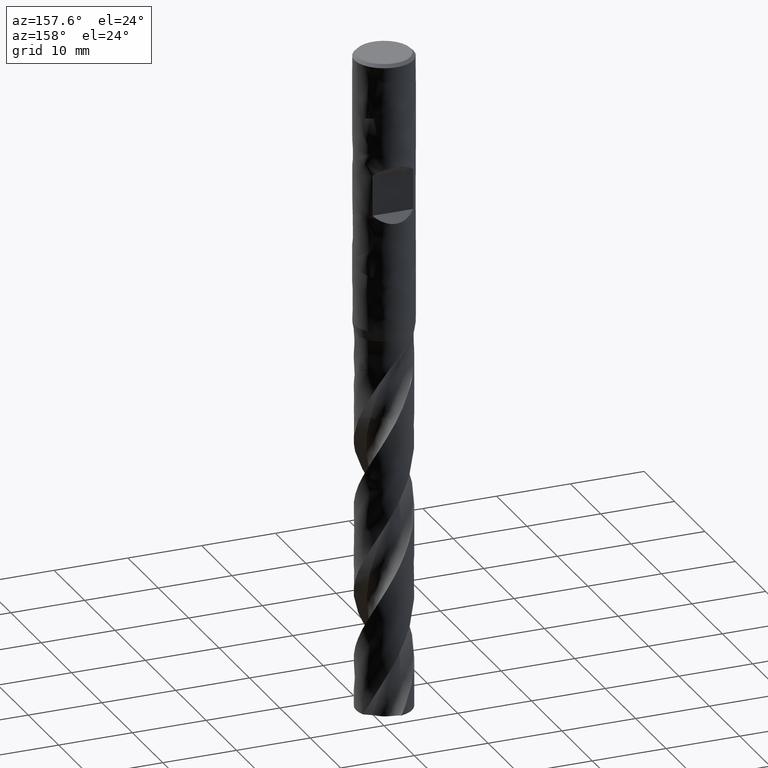
[diagram: clean part render]
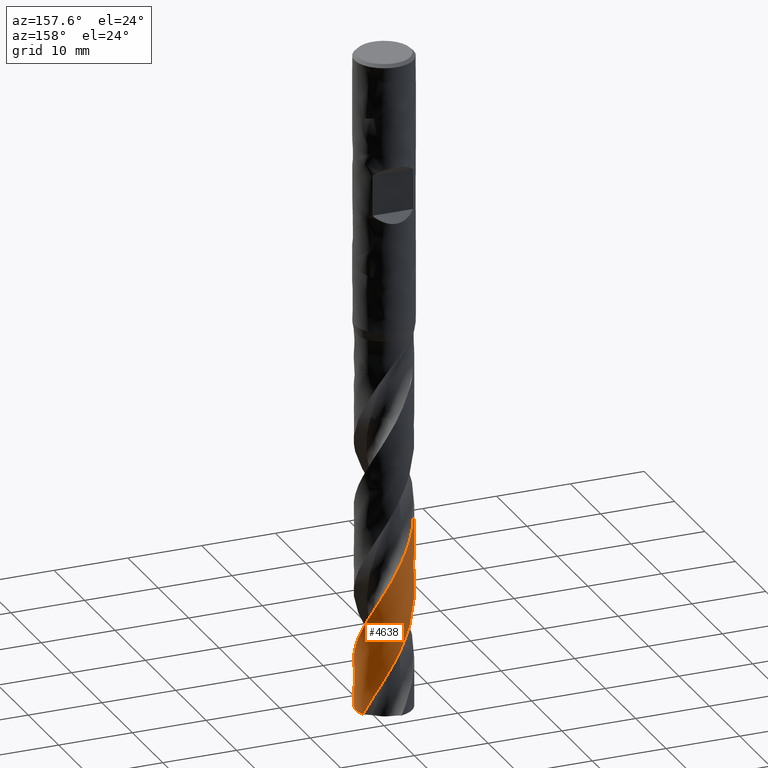
[diagram: same view with one face highlighted and labeled with its STEP entity id]
A machine part, auxiliary view. The second image highlights one B-rep face of the part: STEP entity #4638.
In plain terms, the highlighted face is a freeform B-spline surface patch.
Its self-contained STEP definition (entity closure, byte-faithful):
#3403 = VERTEX_POINT('', #3404);
#3404 = CARTESIAN_POINT('', (-3.8, 4.60787494577363E-15, -71.4523086490213));
#3537 = EDGE_CURVE('', #3538, #3403, #3540, .T.);
#3538 = VERTEX_POINT('', #3539);
#3539 = CARTESIAN_POINT('', (3.47322143112117, 1.54166562211157, -89.6169131097884));
#3540 = B_SPLINE_CURVE_WITH_KNOTS('', 3, (#3541, #3542, #3543, #3544, #3545, #3546, #3547, #3548, #3549, #3550, #3551, #3552, #3553, #3554, #3555, #3556, #3557, #3558, #3559, #3560, #3561, #3562, #3563, #3564, #3565, #3566, #3567, #3568, #3569, #3570, #3571, #3572, #3573, #3574, #3575, #3576, #3577, #3578, #3579, #3580, #3581, #3582, #3583, #3584, #3585, #3586, #3587, #3588, #3589, #3590, #3591, #3592, #3593, #3594, #3595, #3596, #3597, #3598, #3599, #3600, #3601, #3602, #3603, #3604, #3605, #3606, #3607, #3608, #3609, #3610, #3611, #3612, #3613, #3614, #3615, #3616, #3617, #3618, #3619, #3620, #3621, #3622, #3623, #3624, #3625, #3626, #3627, #3628, #3629, #3630, #3631, #3632, #3633, #3634, #3635, #3636, #3637, #3638, #3639, #3640), .UNSPECIFIED., .F., .U., (4, 3, 3, 3, 3, 3, 3, 3, 3, 3, 3, 3, 3, 3, 3, 3, 3, 3, 3, 3, 3, 3, 3, 3, 3, 3, 3, 3, 3, 3, 3, 3, 3, 4), (0., 0.665608523201099, 1.33105944424927, 1.99635525688084, 2.6614979072382, 3.32648864991927, 3.99132805909783, 4.65601599023522, 5.3205518367991, 5.98493467396176, 6.64916294628067, 7.31323440252278, 7.97714602530676, 8.64089397263767, 8.83782115761003, 8.89620505573917, 9.5626280298918, 10.2288700928858, 10.89493754029, 11.5608358022644, 12.226569413266, 12.8921420580282, 13.5575566020663, 14.2228151781672, 14.8879195174179, 15.5528707979881, 16.2176695753299, 16.8823157565046, 17.5468085680973, 18.2111466279843, 18.875328167023, 19.5393508010512, 20.2032114383578, 20.9050750751549), .UNSPECIFIED.);
#3541 = CARTESIAN_POINT('', (3.47322143112117, 1.54166562211157, -89.6169131097884));
#3542 = CARTESIAN_POINT('', (3.4287370697299, 1.6418845250422, -89.4240313025878));
#3543 = CARTESIAN_POINT('', (3.37989840608135, 1.74020464956586, -89.231108811655));
#3544 = CARTESIAN_POINT('', (3.32690885699985, 1.83621280281343, -89.0382341874554));
#3545 = CARTESIAN_POINT('', (3.27393185473338, 1.9321982233418, -88.8454052319259));
#3546 = CARTESIAN_POINT('', (3.21678224873667, 2.02591572115514, -88.6525354005174));
#3547 = CARTESIAN_POINT('', (3.15569793079541, 2.11697202852886, -88.4597136569228));
#3548 = CARTESIAN_POINT('', (3.09462785085659, 2.20800711179842, -88.2669368577025));
#3549 = CARTESIAN_POINT('', (3.02959782823982, 2.296422579319, -88.0741191608836));
#3550 = CARTESIAN_POINT('', (2.96087888634109, 2.38184722860631, -87.8813494234099));
#3551 = CARTESIAN_POINT('', (2.89217576469739, 2.46725221170406, -87.6886240647686));
#3552 = CARTESIAN_POINT('', (2.81975446284853, 2.54970618028877, -87.4958581476118));
#3553 = CARTESIAN_POINT('', (2.74391779176185, 2.62886194998003, -87.3031398107364));
#3554 = CARTESIAN_POINT('', (2.66809844052749, 2.70799964179126, -87.1104654875695));
#3555 = CARTESIAN_POINT('', (2.58883025622656, 2.78387714769229, -86.9177509617296));
#3556 = CARTESIAN_POINT('', (2.50644563773044, 2.85617406071515, -86.7250836990791));
#3557 = CARTESIAN_POINT('', (2.42407976769512, 2.92845452096, -86.5324602821693));
#3558 = CARTESIAN_POINT('', (2.33856037811085, 2.99718980603697, -86.3397967340994));
#3559 = CARTESIAN_POINT('', (2.25024615381847, 3.0620895230586, -86.1471805179077));
#3560 = CARTESIAN_POINT('', (2.1619520511758, 3.12697445322813, -85.9546081876931));
#3561 = CARTESIAN_POINT('', (2.07082381264477, 3.1880554322854, -85.7619953411637));
#3562 = CARTESIAN_POINT('', (1.97724248761639, 3.24507506002012, -85.5694302800862));
#3563 = CARTESIAN_POINT('', (1.8836825745548, 3.30208164132302, -85.3769092790462));
#3564 = CARTESIAN_POINT('', (1.78762893226396, 3.35505420990411, -85.1843474110194));
#3565 = CARTESIAN_POINT('', (1.6894824201439, 3.40376984416173, -84.9918335345769));
#3566 = CARTESIAN_POINT('', (1.59135850626157, 3.45247426164291, -84.799363984461));
#3567 = CARTESIAN_POINT('', (1.491099073261, 3.49694533584245, -84.6068536625928));
#3568 = CARTESIAN_POINT('', (1.38912303576366, 3.53699550346206, -84.4143911407098));
#3569 = CARTESIAN_POINT('', (1.28717072240461, 3.57703635364064, -84.2219733941249));
#3570 = CARTESIAN_POINT('', (1.18345645687144, 3.61267643893127, -84.0295152138289));
#3571 = CARTESIAN_POINT('', (1.07841477703084, 3.64376475210484, -83.8371044673427));
#3572 = CARTESIAN_POINT('', (0.973397896231198, 3.67484572571232, -83.6447391466531));
#3573 = CARTESIAN_POINT('', (0.867005597804218, 3.70139143835938, -83.4523337062437));
#3574 = CARTESIAN_POINT('', (0.759684615100111, 3.72328877278952, -83.2599754410364));
#3575 = CARTESIAN_POINT('', (0.652389463176161, 3.7451808368129, -83.0676634739894));
#3576 = CARTESIAN_POINT('', (0.544116053657727, 3.76243697681111, -82.8753113563683));
#3577 = CARTESIAN_POINT('', (0.435318635561176, 3.77498313711913, -82.6830065970925));
#3578 = CARTESIAN_POINT('', (0.326548039508537, 3.78752620439729, -82.4907492470915));
#3579 = CARTESIAN_POINT('', (0.217204078610861, 3.79536737727738, -82.2984513323388));
#3580 = CARTESIAN_POINT('', (0.107744039308584, 3.7984722220907, -82.1062011841817));
#3581 = CARTESIAN_POINT('', (0.0752683721619798, 3.79939339759312, -82.0491625437772));
#3582 = CARTESIAN_POINT('', (0.042779710786044, 3.79989808796342, -81.9921230537736));
#3583 = CARTESIAN_POINT('', (0.0102900997918511, 3.79998606758582, -81.9350849835296));
#3584 = CARTESIAN_POINT('', (0.000657757061686365, 3.80001215130459, -81.9181746474423));
#3585 = CARTESIAN_POINT('', (-0.00897474602599896, 3.80000161031444, -81.9012643065416));
#3586 = CARTESIAN_POINT('', (-0.0186070995224115, 3.79995444391737, -81.8843540222486));
#3587 = CARTESIAN_POINT('', (-0.128555593385741, 3.79941606310312, -81.6913315911779));
#3588 = CARTESIAN_POINT('', (-0.238512670461871, 3.79410114208098, -81.4982684339614));
#3589 = CARTESIAN_POINT('', (-0.34801313876902, 3.78403050400554, -81.3052532797832));
#3590 = CARTESIAN_POINT('', (-0.457483881425397, 3.77396259976563, -81.112290522651));
#3591 = CARTESIAN_POINT('', (-0.566548399231276, 3.75913698966904, -80.919286623452));
#3592 = CARTESIAN_POINT('', (-0.674746688142886, 3.73961453987444, -80.7263310947304));
#3593 = CARTESIAN_POINT('', (-0.782916619331259, 3.72009720672479, -80.5334261377835));
#3594 = CARTESIAN_POINT('', (-0.890269354458009, 3.69587674043127, -80.3404798861369));
#3595 = CARTESIAN_POINT('', (-0.996352471630336, 3.66705355186916, -80.1475820407021));
#3596 = CARTESIAN_POINT('', (-1.10240864300635, 3.63823768458293, -79.9547331925648));
#3597 = CARTESIAN_POINT('', (-1.20724366475434, 3.60480841605224, -79.7618432376716));
#3598 = CARTESIAN_POINT('', (-1.31041501039927, 3.56690517122622, -79.5690014336151));
#3599 = CARTESIAN_POINT('', (-1.4135608457472, 3.52901129841164, -79.3762073119036));
#3600 = CARTESIAN_POINT('', (-1.51509124549378, 3.48662820526158, -79.1833724136468));
#3601 = CARTESIAN_POINT('', (-1.61457656510718, 3.43993350450365, -78.9905853331264));
#3602 = CARTESIAN_POINT('', (-1.71403783038787, 3.39325009395287, -78.7978448661626));
#3603 = CARTESIAN_POINT('', (-1.81150156324607, 3.34223528708758, -78.6050638425811));
#3604 = CARTESIAN_POINT('', (-1.90655474350531, 3.28710343768149, -78.4123304935702));
#3605 = CARTESIAN_POINT('', (-2.00158534474669, 3.23198468434444, -78.2196429266121));
#3606 = CARTESIAN_POINT('', (-2.09425097825625, 3.17272509484493, -78.0269146449689));
#3607 = CARTESIAN_POINT('', (-2.18415957329815, 3.10957343672248, -77.8342343314547));
#3608 = CARTESIAN_POINT('', (-2.27404709447229, 3.04643658085216, -77.641599180691));
#3609 = CARTESIAN_POINT('', (-2.36121989229479, 2.97938070985938, -77.4489229228469));
#3610 = CARTESIAN_POINT('', (-2.44531007475832, 2.90868675492661, -77.2562949490451));
#3611 = CARTESIAN_POINT('', (-2.52938076133655, 2.83800919003125, -77.0637116350689));
#3612 = CARTESIAN_POINT('', (-2.6104080424575, 2.76366346998024, -76.8710871299144));
#3613 = CARTESIAN_POINT('', (-2.68804998836401, 2.68596114269292, -76.6785108906913));
#3614 = CARTESIAN_POINT('', (-2.76567406673743, 2.60827669683409, -76.4859789685223));
#3615 = CARTESIAN_POINT('', (-2.83994948346621, 2.52720201118442, -76.2934060643397));
#3616 = CARTESIAN_POINT('', (-2.91056215657661, 2.44307755355906, -76.1008811627004));
#3617 = CARTESIAN_POINT('', (-2.98115863502595, 2.35897238945451, -75.9084004156781));
#3618 = CARTESIAN_POINT('', (-3.04812659423621, 2.27178003184526, -75.7158789948248));
#3619 = CARTESIAN_POINT('', (-3.1111820835288, 2.18186755856752, -75.5234052776789));
#3620 = CARTESIAN_POINT('', (-3.17422309922982, 2.091975723563, -75.3309757404451));
#3621 = CARTESIAN_POINT('', (-3.23338294785028, 1.99932292633316, -75.1385056861759));
#3622 = CARTESIAN_POINT('', (-3.2884104043262, 1.90429961211969, -74.9460832673916));
#3623 = CARTESIAN_POINT('', (-3.34342516301158, 1.80929822488992, -74.7537052507972));
#3624 = CARTESIAN_POINT('', (-3.39433506838022, 1.71188320591533, -74.5612865026466));
#3625 = CARTESIAN_POINT('', (-3.44092414624077, 1.61246426931491, -74.3689157112386));
#3626 = CARTESIAN_POINT('', (-3.48750237411296, 1.51306848608764, -74.1765897204779));
#3627 = CARTESIAN_POINT('', (-3.52978298354679, 1.41162455490792, -73.9842226561933));
#3628 = CARTESIAN_POINT('', (-3.56758677178201, 1.3085582240795, -73.7919037938792));
#3629 = CARTESIAN_POINT('', (-3.60538165328532, 1.20551617611322, -73.5996302427));
#3630 = CARTESIAN_POINT('', (-3.63871882806991, 1.10080612033904, -73.4073156077959));
#3631 = CARTESIAN_POINT('', (-3.66745666296212, 0.994867642098631, -73.2150490977797));
#3632 = CARTESIAN_POINT('', (-3.69618762234562, 0.888954509571725, -73.0228285874037));
#3633 = CARTESIAN_POINT('', (-3.72033447650589, 0.781765395785943, -72.8305672251737));
#3634 = CARTESIAN_POINT('', (-3.7397940298222, 0.67375115176639, -72.6383537158889));
#3635 = CARTESIAN_POINT('', (-3.75924883573432, 0.565763259188067, -72.4461870995212));
#3636 = CARTESIAN_POINT('', (-3.77402760622403, 0.456900647341844, -72.2539799125677));
#3637 = CARTESIAN_POINT('', (-3.78406644488966, 0.347622123376554, -72.0618203206109));
#3638 = CARTESIAN_POINT('', (-3.79467996137057, 0.232087901366832, -71.8586604667545));
#3639 = CARTESIAN_POINT('', (-3.8, 0.116034598095936, -71.6554605661946));
#3640 = CARTESIAN_POINT('', (-3.8, 4.32143550806654E-15, -71.4523086490213));
#3819 = VERTEX_POINT('', #3820);
#3820 = CARTESIAN_POINT('', (-3.8, 3.88552467171039E-15, -59.6554334264482));
#3869 = EDGE_CURVE('', #3819, #3403, #3870, .T.);
#3870 = LINE('', #3871, #3872);
#3871 = CARTESIAN_POINT('', (-3.8, 3.88552467171039E-15, -59.6554334264482));
#3872 = VECTOR('', #3873, 11.7968752225731);
#3873 = DIRECTION('', (0., 7.22350274063245E-16, -11.7968752225731));
#3897 = VERTEX_POINT('', #3898);
#3898 = CARTESIAN_POINT('', (0.818390835246708, -3.71082692142656, -89.6169131097884));
#4022 = EDGE_CURVE('', #4023, #3897, #4025, .T.);
#4023 = VERTEX_POINT('', #4024);
#4024 = CARTESIAN_POINT('', (1.45695128505315, -3.50960011297326, -88.433287096672));
#4025 = B_SPLINE_CURVE_WITH_KNOTS('', 3, (#4026, #4027, #4028, #4029, #4030, #4031, #4032), .UNSPECIFIED., .F., .U., (4, 3, 4), (0., 0.664272788119889, 1.36018940492356), .UNSPECIFIED.);
#4026 = CARTESIAN_POINT('', (1.45695128505302, -3.50960011297332, -88.4332870966722));
#4027 = CARTESIAN_POINT('', (1.35615368713917, -3.55144453543842, -88.6259463624201));
#4028 = CARTESIAN_POINT('', (1.25353672502603, -3.58894882740191, -88.8186536722514));
#4029 = CARTESIAN_POINT('', (1.14952566308425, -3.62195951798336, -89.0113209954182));
#4030 = CARTESIAN_POINT('', (1.04055984718572, -3.65654273216684, -89.213166372957));
#4031 = CARTESIAN_POINT('', (0.930016094089074, -3.68620893445144, -89.4150595478254));
#4032 = CARTESIAN_POINT('', (0.818390835246634, -3.71082692142658, -89.6169131097884));
#4431 = EDGE_CURVE('', #3538, #3897, #4432, .T.);
#4432 = CIRCLE('', #4433, 3.80000000000001);
#4433 = AXIS2_PLACEMENT_3D('', #4434, #4435, #4436);
#4434 = CARTESIAN_POINT('', (3.36009605320907E-31, 5.48745328946844E-15, -89.6169131097884));
#4435 = DIRECTION('', (3.74939945665464E-33, 6.12323399573677E-17, -1.));
#4436 = DIRECTION('', (-1., 6.12323399573677E-17, 0.));
#4638 = ADVANCED_FACE('', (#4639), #4808, .T.);
#4639 = FACE_OUTER_BOUND('', #4640, .T.);
#4640 = EDGE_LOOP('', (#4641, #4642, #4643, #4644, #4645));
#4641 = ORIENTED_EDGE('', *, *, #4022, .T.);
#4642 = ORIENTED_EDGE('', *, *, #4431, .F.);
#4643 = ORIENTED_EDGE('', *, *, #3537, .T.);
#4644 = ORIENTED_EDGE('', *, *, #3869, .F.);
#4645 = ORIENTED_EDGE('', *, *, #4646, .F.);
#4646 = EDGE_CURVE('', #4023, #3819, #4647, .T.);
#4647 = B_SPLINE_CURVE_WITH_KNOTS('', 3, (#4648, #4649, #4650, #4651, #4652, #4653, #4654, #4655, #4656, #4657, #4658, #4659, #4660, #4661, #4662, #4663, #4664, #4665, #4666, #4667, #4668, #4669, #4670, #4671, #4672, #4673, #4674, #4675, #4676, #4677, #4678, #4679, #4680, #4681, #4682, #4683, #4684, #4685, #4686, #4687, #4688, #4689, #4690, #4691, #4692, #4693, #4694, #4695, #4696, #4697, #4698, #4699, #4700, #4701, #4702, #4703, #4704, #4705, #4706, #4707, #4708, #4709, #4710, #4711, #4712, #4713, #4714, #4715, #4716, #4717, #4718, #4719, #4720, #4721, #4722, #4723, #4724, #4725, #4726, #4727, #4728, #4729, #4730, #4731, #4732, #4733, #4734, #4735, #4736, #4737, #4738, #4739, #4740, #4741, #4742, #4743, #4744, #4745, #4746, #4747, #4748, #4749, #4750, #4751, #4752, #4753, #4754, #4755, #4756, #4757, #4758, #4759, #4760, #4761, #4762, #4763, #4764, #4765, #4766, #4767, #4768, #4769, #4770, #4771, #4772, #4773, #4774, #4775, #4776, #4777, #4778, #4779, #4780, #4781, #4782, #4783, #4784, #4785, #4786, #4787, #4788, #4789, #4790, #4791, #4792, #4793, #4794, #4795, #4796, #4797, #4798, #4799, #4800, #4801, #4802, #4803, #4804, #4805, #4806, #4807), .UNSPECIFIED., .F., .U., (4, 3, 3, 3, 3, 3, 3, 3, 3, 3, 3, 3, 3, 3, 3, 3, 3, 3, 3, 3, 3, 3, 3, 3, 3, 3, 3, 3, 3, 3, 3, 3, 3, 3, 3, 3, 3, 3, 3, 3, 3, 3, 3, 3, 3, 3, 3, 3, 3, 3, 3, 3, 3, 4), (0., 0.66564916502275, 1.33114183490303, 1.99648056398673, 2.66166718657178, 3.32670279920492, 3.99158792021815, 4.65632280702021, 5.32090715582369, 5.98534002813348, 6.64961980165474, 7.31374411978162, 7.97771005250743, 8.64151425997933, 8.93682095111878, 9.02437491684871, 9.11194397279557, 9.77835858362123, 10.444593667096, 11.1106553797434, 11.776548986732, 12.4422788713376, 13.1078485777011, 13.7732608399649, 14.4385177003605, 15.1036208011451, 15.7685712091474, 16.4333693710371, 17.0980150855504, 17.7625074717942, 18.4268450801492, 19.0910260552743, 19.7550479103264, 20.4189074455224, 21.0826006601045, 21.1409790977908, 21.8074147780164, 22.4736681056621, 23.1397453667086, 23.8056519142928, 24.4713922210635, 25.1369699243084, 25.8023878581793, 26.4676481753488, 27.1327525209729, 27.7977019514411, 28.4624969135959, 29.1271372166089, 29.7916220013483, 30.4559498419646, 31.1201187957783, 31.7841262922288, 32.4479690559342, 33.1262755860097), .UNSPECIFIED.);
#4648 = CARTESIAN_POINT('', (1.45695128505315, -3.50960011297326, -88.433287096672));
#4649 = CARTESIAN_POINT('', (1.55795773614917, -3.46766898863262, -88.2402286398564));
#4650 = CARTESIAN_POINT('', (1.65718465776639, -3.42136002753163, -88.047132285475));
#4651 = CARTESIAN_POINT('', (1.75421814699467, -3.37086319698005, -87.8540865339757));
#4652 = CARTESIAN_POINT('', (1.8512288235004, -3.32037823831099, -87.6610861678295));
#4653 = CARTESIAN_POINT('', (1.94608983023695, -3.26568508148982, -87.4680483462775));
#4654 = CARTESIAN_POINT('', (2.03840374682355, -3.20700953614667, -87.2750606137047));
#4655 = CARTESIAN_POINT('', (2.13069630948922, -3.14834756354534, -87.0821175227734));
#4656 = CARTESIAN_POINT('', (2.22048518636959, -3.08567813732563, -86.8891375094508));
#4657 = CARTESIAN_POINT('', (2.30739241204256, -3.01926154164365, -86.696207080449));
#4658 = CARTESIAN_POINT('', (2.39427976940903, -2.95286012980018, -86.503320758262));
#4659 = CARTESIAN_POINT('', (2.47832756299439, -2.88268208435732, -86.3103977051305));
#4660 = CARTESIAN_POINT('', (2.55918136605744, -2.80901953279509, -86.1175242111523));
#4661 = CARTESIAN_POINT('', (2.64001681377705, -2.73537370402612, -85.9246945031073));
#4662 = CARTESIAN_POINT('', (2.71769709871414, -2.65821097206171, -85.7318275627535));
#4663 = CARTESIAN_POINT('', (2.79189575131071, -2.57785145301531, -85.5390108579292));
#4664 = CARTESIAN_POINT('', (2.86607761341485, -2.49751011861041, -85.3462377858032));
#4665 = CARTESIAN_POINT('', (2.93681214017942, -2.4139380816838, -85.1534268159327));
#4666 = CARTESIAN_POINT('', (3.00380299068788, -2.32748095440854, -84.9606665318813));
#4667 = CARTESIAN_POINT('', (3.07077870426928, -2.24104336256565, -84.7679498030072));
#4668 = CARTESIAN_POINT('', (3.13404148176564, -2.15168446953761, -84.5751951939232));
#4669 = CARTESIAN_POINT('', (3.19332571011196, -2.05977448016474, -84.3824910808271));
#4670 = CARTESIAN_POINT('', (3.25259651276142, -1.96788530502341, -84.1898306081237));
#4671 = CARTESIAN_POINT('', (3.30791687033424, -1.87340531186887, -83.9971327085985));
#4672 = CARTESIAN_POINT('', (3.35905322981273, -1.77672772232682, -83.8044847843511));
#4673 = CARTESIAN_POINT('', (3.41017793395139, -1.68007216818525, -83.6118807697026));
#4674 = CARTESIAN_POINT('', (3.45714407412786, -1.581175428609, -83.4192398193953));
#4675 = CARTESIAN_POINT('', (3.49975216419146, -1.48045087363181, -83.226648405609));
#4676 = CARTESIAN_POINT('', (3.54235043648831, -1.37974952763175, -83.0341013687844));
#4677 = CARTESIAN_POINT('', (3.58061266976088, -1.27717391433779, -82.8415174730883));
#4678 = CARTESIAN_POINT('', (3.61437575002508, -1.17315298986568, -82.6489832242859));
#4679 = CARTESIAN_POINT('', (3.64813092902061, -1.06915640847081, -82.4564940325346));
#4680 = CARTESIAN_POINT('', (3.67740460593753, -0.963667488679634, -82.2639674091385));
#4681 = CARTESIAN_POINT('', (3.70207183260914, -0.857125513680638, -82.0714911106402));
#4682 = CARTESIAN_POINT('', (3.72673317645358, -0.750608947619367, -81.8790607153485));
#4683 = CARTESIAN_POINT('', (3.74680114331925, -0.642993023849729, -81.6865923484979));
#4684 = CARTESIAN_POINT('', (3.76218945898308, -0.534724671880099, -81.4941746220259));
#4685 = CARTESIAN_POINT('', (3.77757402644368, -0.426482691333834, -81.3018037636298));
#4686 = CARTESIAN_POINT('', (3.78828791605806, -0.317541326716243, -81.1093950637339));
#4687 = CARTESIAN_POINT('', (3.79428367749271, -0.208353964958399, -80.9170367280534));
#4688 = CARTESIAN_POINT('', (3.79695101290606, -0.159779764686673, -80.8314622424091));
#4689 = CARTESIAN_POINT('', (3.79868565773034, -0.111149792571872, -80.7458852429679));
#4690 = CARTESIAN_POINT('', (3.79948591056436, -0.0625045232195418, -80.6603132991513));
#4691 = CARTESIAN_POINT('', (3.79972317342128, -0.0480819368928884, -80.6349425125719));
#4692 = CARTESIAN_POINT('', (3.79987831815881, -0.0336577589701177, -80.6095717298653));
#4693 = CARTESIAN_POINT('', (3.79995132729073, -0.0192330502374442, -80.5842011455339));
#4694 = CARTESIAN_POINT('', (3.80002434900601, -0.00480585535828668, -80.558826188498));
#4695 = CARTESIAN_POINT('', (3.80001520746368, 0.00962198241282745, -80.5334512275083));
#4696 = CARTESIAN_POINT('', (3.79992389727098, 0.0240494272056504, -80.5080764717848));
#4697 = CARTESIAN_POINT('', (3.79922901200729, 0.133844604313089, -80.3149704964219));
#4698 = CARTESIAN_POINT('', (3.79377080363055, 0.243646381017104, -80.1218268056013));
#4699 = CARTESIAN_POINT('', (3.78356932775074, 0.352991702599451, -79.9287337916408));
#4700 = CARTESIAN_POINT('', (3.77337060007589, 0.46230756733076, -79.7356927955633));
#4701 = CARTESIAN_POINT('', (3.75842662251132, 0.571216457316438, -79.5426134240348));
#4702 = CARTESIAN_POINT('', (3.73879721474249, 0.679260912340697, -79.3495852380518));
#4703 = CARTESIAN_POINT('', (3.71917291503049, 0.787277251528649, -79.1566072827714));
#4704 = CARTESIAN_POINT('', (3.6948569763791, 0.89447719018069, -78.9635908433298));
#4705 = CARTESIAN_POINT('', (3.66594860990641, 1.00041031058528, -78.7706255245696));
#4706 = CARTESIAN_POINT('', (3.63704753954442, 1.10631669479312, -78.5777089078462));
#4707 = CARTESIAN_POINT('', (3.60354338508408, 1.21100427300879, -78.3847541655129));
#4708 = CARTESIAN_POINT('', (3.56557441329805, 1.31403162185478, -78.1918501021464));
#4709 = CARTESIAN_POINT('', (3.52761477689305, 1.41703363950238, -77.9989934678476));
#4710 = CARTESIAN_POINT('', (3.48517492017424, 1.51842384591652, -77.8060991888583));
#4711 = CARTESIAN_POINT('', (3.43843142472519, 1.61777295609191, -77.6132551301759));
#4712 = CARTESIAN_POINT('', (3.39169917601615, 1.71709816232939, -77.420457470826));
#4713 = CARTESIAN_POINT('', (3.34064323453644, 1.81443023651486, -77.2276223709957));
#4714 = CARTESIAN_POINT('', (3.28547685722253, 1.90935638911524, -77.0348374299841));
#4715 = CARTESIAN_POINT('', (3.23032352981236, 2.00426008642284, -76.8420980932889));
#4716 = CARTESIAN_POINT('', (3.17103595051483, 2.09680341717493, -76.6493209102701));
#4717 = CARTESIAN_POINT('', (3.10786133509537, 2.18659505208881, -76.4565944630376));
#4718 = CARTESIAN_POINT('', (3.04470147361691, 2.27636571686342, -76.2639130255706));
#4719 = CARTESIAN_POINT('', (2.97762805969329, 2.36342632159657, -76.0711931421943));
#4720 = CARTESIAN_POINT('', (2.90692018294735, 2.4474098655463, -75.8785244181831));
#4721 = CARTESIAN_POINT('', (2.83622864878467, 2.5313739985319, -75.6859002253445));
#4722 = CARTESIAN_POINT('', (2.76187304916321, 2.6122996321479, -75.4932375714331));
#4723 = CARTESIAN_POINT('', (2.68416335659228, 2.68984517679499, -75.3006259402086));
#4724 = CARTESIAN_POINT('', (2.60647150442709, 2.76737291872104, -75.1080585283027));
#4725 = CARTESIAN_POINT('', (2.52539202834684, 2.84155705407993, -74.9154530408624));
#4726 = CARTESIAN_POINT('', (2.44126438659443, 2.91208313664733, -74.7228981282789));
#4727 = CARTESIAN_POINT('', (2.35715600658885, 2.98259307166181, -74.5303873027981));
#4728 = CARTESIAN_POINT('', (2.26996167907139, 3.04947941048387, -74.3378388441062));
#4729 = CARTESIAN_POINT('', (2.18004796405847, 3.11245736909031, -74.1453405609124));
#4730 = CARTESIAN_POINT('', (2.09015486749899, 3.17542088598329, -73.9528864202267));
#4731 = CARTESIAN_POINT('', (1.99750105161186, 3.23450763064052, -73.7603947447297));
#4732 = CARTESIAN_POINT('', (1.90247637041428, 3.28946555841756, -73.5679533103311));
#4733 = CARTESIAN_POINT('', (1.80747361062477, 3.34441080785517, -73.3755562705798));
#4734 = CARTESIAN_POINT('', (1.71005691599123, 3.39525474454189, -73.1831212149419));
#4735 = CARTESIAN_POINT('', (1.61063480419773, 3.44178086570121, -72.9907369914598));
#4736 = CARTESIAN_POINT('', (1.5112358504492, 3.48829614969376, -72.7983975793623));
#4737 = CARTESIAN_POINT('', (1.40978789295844, 3.53051650297007, -72.606019659038));
#4738 = CARTESIAN_POINT('', (1.30671536909389, 3.56826217424868, -72.413692874057));
#4739 = CARTESIAN_POINT('', (1.20366714700322, 3.60599894609674, -72.221411434643));
#4740 = CARTESIAN_POINT('', (1.09894927296825, 3.63927991531759, -72.0290915783407));
#4741 = CARTESIAN_POINT('', (0.993000654826688, 3.66796260879443, -71.8368226381099));
#4742 = CARTESIAN_POINT('', (0.887077419152379, 3.6966384306618, -71.6445997603966));
#4743 = CARTESIAN_POINT('', (0.779875804968287, 3.72073118537504, -71.4523388784132));
#4744 = CARTESIAN_POINT('', (0.671846851584757, 3.74013660285506, -71.2601284615905));
#4745 = CARTESIAN_POINT('', (0.563844305832279, 3.75953727668916, -71.0679650305213));
#4746 = CARTESIAN_POINT('', (0.454964198499081, 3.77426195819841, -70.8757639827337));
#4747 = CARTESIAN_POINT('', (0.345666085989687, 3.78424562588077, -70.6836130804303));
#4748 = CARTESIAN_POINT('', (0.236395356575982, 3.79422679229644, -70.4915103188168));
#4749 = CARTESIAN_POINT('', (0.126655121561682, 3.79947405342494, -70.2993698972978));
#4750 = CARTESIAN_POINT('', (0.0169083038422026, 3.79996238261162, -70.1072798544945));
#4751 = CARTESIAN_POINT('', (0.00725497664412151, 3.80000533603403, -70.0903836193853));
#4752 = CARTESIAN_POINT('', (-0.00239860787646574, 3.80001150501877, -70.0734873977343));
#4753 = CARTESIAN_POINT('', (-0.0120521386982741, 3.79998088757731, -70.0565912521057));
#4754 = CARTESIAN_POINT('', (-0.122254768895064, 3.79963136545513, -69.8637084900554));
#4755 = CARTESIAN_POINT('', (-0.232479072362773, 3.7944832576611, -69.6707872591347));
#4756 = CARTESIAN_POINT('', (-0.342256807991641, 3.78455549270765, -69.4779173807));
#4757 = CARTESIAN_POINT('', (-0.452004505833072, 3.77463044422574, -69.2851002760302));
#4758 = CARTESIAN_POINT('', (-0.561355899778235, 3.75992387220199, -69.0922441761013));
#4759 = CARTESIAN_POINT('', (-0.669847813798396, 3.74049514186954, -68.8994397968668));
#4760 = CARTESIAN_POINT('', (-0.778311057339084, 3.72107154584613, -68.7066863688395));
#4761 = CARTESIAN_POINT('', (-0.88596406932044, 3.69691953844506, -68.5138939428237));
#4762 = CARTESIAN_POINT('', (-0.992350449333285, 3.66813857231541, -68.3211531079325));
#4763 = CARTESIAN_POINT('', (-1.09870956285871, 3.63936498265491, -68.1284616718982));
#4764 = CARTESIAN_POINT('', (-1.20385135119323, 3.60595159937042, -67.9357315892374));
#4765 = CARTESIAN_POINT('', (-1.30732858436127, 3.56803755200418, -67.743052692518));
#4766 = CARTESIAN_POINT('', (-1.41077998486632, 3.53013296972295, -67.5504218972876));
#4767 = CARTESIAN_POINT('', (-1.51261631995696, 3.48771209601482, -67.3577528574183));
#4768 = CARTESIAN_POINT('', (-1.61240295135994, 3.44095288000952, -67.1651346422691));
#4769 = CARTESIAN_POINT('', (-1.71216521040944, 3.39420508469379, -66.9725634730935));
#4770 = CARTESIAN_POINT('', (-1.80992643096382, 3.34309872461915, -66.7799541500052));
#4771 = CARTESIAN_POINT('', (-1.90526905320557, 3.28784881569959, -66.587395712528));
#4772 = CARTESIAN_POINT('', (-2.00058878881665, 3.23261216930869, -66.394883497965));
#4773 = CARTESIAN_POINT('', (-2.0935359247377, 3.17320803146122, -66.2023326979311));
#4774 = CARTESIAN_POINT('', (-2.18371459283981, 3.10988594276679, -66.0098333141395));
#4775 = CARTESIAN_POINT('', (-2.27387190043527, 3.04657885309513, -65.8173795274326));
#4776 = CARTESIAN_POINT('', (-2.36130308852888, 2.97932689156988, -65.6248867160771));
#4777 = CARTESIAN_POINT('', (-2.44563649727211, 2.90841230282273, -65.432445595196));
#4778 = CARTESIAN_POINT('', (-2.52995013388741, 2.83751434013567, -65.2400495925014));
#4779 = CARTESIAN_POINT('', (-2.61120554789735, 2.76292340240737, -65.0476146439168));
#4780 = CARTESIAN_POINT('', (-2.68905669220826, 2.68495327819499, -64.8552311951871));
#4781 = CARTESIAN_POINT('', (-2.76688970354163, 2.60700131467276, -64.662892556136));
#4782 = CARTESIAN_POINT('', (-2.84135589242372, 2.52563576059062, -64.4705153402248));
#4783 = CARTESIAN_POINT('', (-2.91213689015693, 2.44120026482613, -64.2781892219851));
#4784 = CARTESIAN_POINT('', (-2.98290144540469, 2.3567843834985, -64.085907781265));
#4785 = CARTESIAN_POINT('', (-3.05001598668704, 2.26926000783941, -63.8935881164439));
#4786 = CARTESIAN_POINT('', (-3.11319251961489, 2.17899801188847, -63.701319259061));
#4787 = CARTESIAN_POINT('', (-3.1763543550361, 2.08875701465688, -63.5090951314642));
#4788 = CARTESIAN_POINT('', (-3.23561018795927, 1.99573657361449, -63.3168327486907));
#4789 = CARTESIAN_POINT('', (-3.29070552908662, 1.90033079247766, -63.1246213791591));
#4790 = CARTESIAN_POINT('', (-3.34578797853062, 1.80494733520879, -62.9324549849025));
#4791 = CARTESIAN_POINT('', (-3.39673763760339, 1.70713514676743, -62.7402498478715));
#4792 = CARTESIAN_POINT('', (-3.44333601661724, 1.60730739955572, -62.5480962239171));
#4793 = CARTESIAN_POINT('', (-3.48992338959768, 1.50750323057878, -62.3559879845714));
#4794 = CARTESIAN_POINT('', (-3.53218272429172, 1.4056391093066, -62.1638407044268));
#4795 = CARTESIAN_POINT('', (-3.56993258483103, 1.30214489967965, -61.9717450832018));
#4796 = CARTESIAN_POINT('', (-3.60767341676387, 1.19867544268695, -61.7796954053456));
#4797 = CARTESIAN_POINT('', (-3.6409240769244, 1.09352959585409, -61.5876068534639));
#4798 = CARTESIAN_POINT('', (-3.66954095973433, 0.987152037343931, -61.3955697040535));
#4799 = CARTESIAN_POINT('', (-3.69815088587095, 0.880800338880385, -61.2035792382642));
#4800 = CARTESIAN_POINT('', (-3.72214255475276, 0.773168041652688, -61.0115502802197));
#4801 = CARTESIAN_POINT('', (-3.74141124430826, 0.664711893202096, -60.8195723334141));
#4802 = CARTESIAN_POINT('', (-3.76067515351994, 0.556282651494505, -60.6276420141645));
#4803 = CARTESIAN_POINT('', (-3.77522756822025, 0.446978350983715, -60.4356734851724));
#4804 = CARTESIAN_POINT('', (-3.78500370876181, 0.337263879863389, -60.243755773625));
#4805 = CARTESIAN_POINT('', (-3.79499285126789, 0.225158956418386, -60.0476565704747));
#4806 = CARTESIAN_POINT('', (-3.8, 0.112572313652599, -59.8515192966778));
#4807 = CARTESIAN_POINT('', (-3.8, 2.42141805798596E-15, -59.6554334264482));
#4808 = (
   BOUNDED_SURFACE ()
   B_SPLINE_SURFACE (2, 1, ((#4809, #4810), (#4811, #4812), (#4813, #4814), (#4815, #4816), (#4817, #4818), (#4819, #4820), (#4821, #4822)), .UNSPECIFIED., .F., .F., .U.)
   B_SPLINE_SURFACE_WITH_KNOTS ((3, 2, 2, 3), (2, 2), (0., 5.96902604182061, 11.9380520836412, 17.0270029332085), (0.419541427833691, 1.), .UNSPECIFIED.)
   GEOMETRIC_REPRESENTATION_ITEM ()
   RATIONAL_B_SPLINE_SURFACE (((1., 1.), (0.707106781186548, 0.707106781186548), (1., 1.), (0.707106781186548, 0.707106781186548), (1., 1.), (0.750291055145306, 0.750291055145306), (0.926365659619961, 0.926365659619961)))
   REPRESENTATION_ITEM ('')
   SURFACE ()
);
#4809 = CARTESIAN_POINT('', (-3.8, 3.88552467171039E-15, -59.6554334264482));
#4810 = CARTESIAN_POINT('', (-3.8, 5.72013618130644E-15, -89.6169131097884));
#4811 = CARTESIAN_POINT('', (-3.8, 3.8, -59.6554334264482));
#4812 = CARTESIAN_POINT('', (-3.8, 3.8, -89.6169131097884));
#4813 = CARTESIAN_POINT('', (2.46519032881566E-31, 3.8, -59.6554334264482));
#4814 = CARTESIAN_POINT('', (3.45126646034193E-31, 3.80000000000001, -89.6169131097884));
#4815 = CARTESIAN_POINT('', (3.8, 3.8, -59.6554334264482));
#4816 = CARTESIAN_POINT('', (3.8, 3.80000000000001, -89.6169131097884));
#4817 = CARTESIAN_POINT('', (3.8, 3.88552467171039E-15, -59.6554334264482));
#4818 = CARTESIAN_POINT('', (3.8, 5.72013618130644E-15, -89.6169131097884));
#4819 = CARTESIAN_POINT('', (3.8, -3.05325876575969, -59.6554334264482));
#4820 = CARTESIAN_POINT('', (3.8, -3.05325876575969, -89.6169131097884));
#4821 = CARTESIAN_POINT('', (0.818390835246633, -3.71082692142658, -59.6554334264482));
#4822 = CARTESIAN_POINT('', (0.818390835246633, -3.71082692142658, -89.6169131097884));